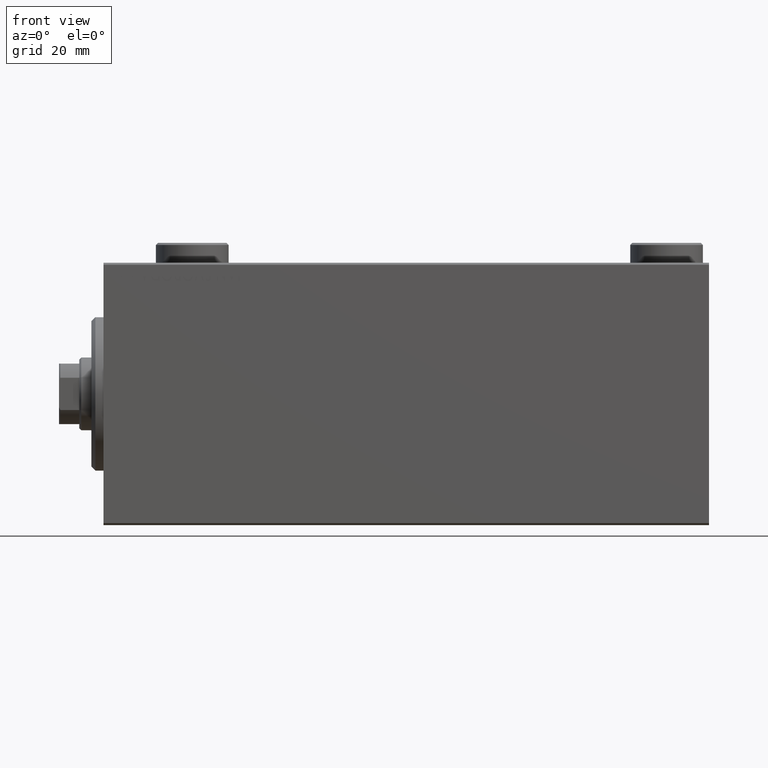
[diagram: clean part render]
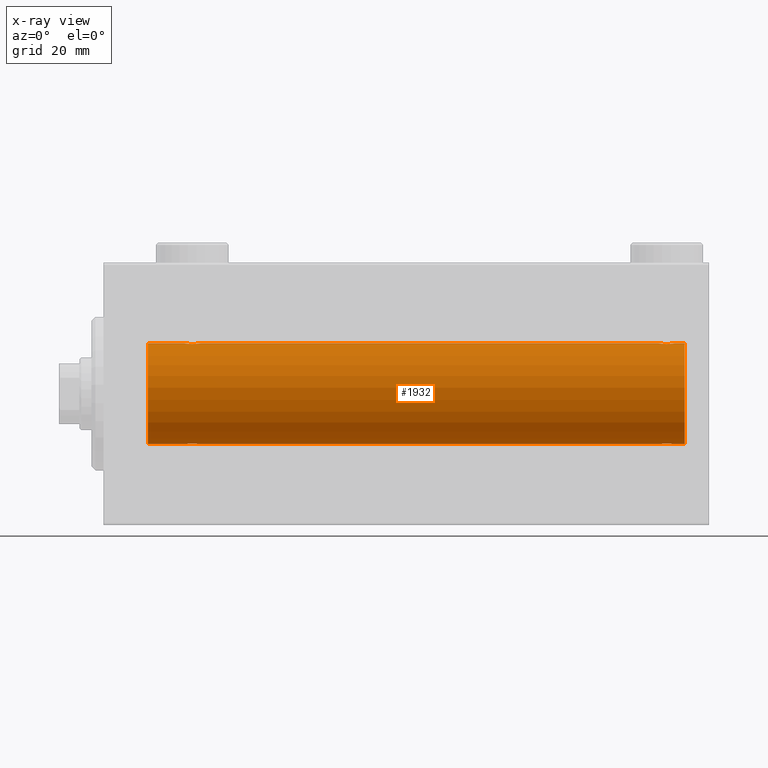
[diagram: x-ray — body ghosted, one internal face saturated and labeled with its STEP entity id]
A machine part, front view, then the same camera in x-ray: the body is ghosted and one INTERNAL B-rep face — a face not visible from any outside direction — is saturated and labeled: STEP entity #1932.
In plain terms, the highlighted cylindrical surface (partial cylindrical patch) has radius 12.5 mm, axis along (-1, -0, -0).
Its self-contained STEP definition (entity closure, byte-faithful):
#68 = CARTESIAN_POINT ( 'NONE',  ( 22.13340250451295077, -1.999916920503817197, -12.33897614545467469 ) ) ;
#323 = CARTESIAN_POINT ( 'NONE',  ( 141.5000000000000000, 1.530808426269529245E-15, -12.50000000000000000 ) ) ;
#525 = CARTESIAN_POINT ( 'NONE',  ( 23.94744340572329833, -0.5247436444070328054, -12.49130933415156619 ) ) ;
#537 = B_SPLINE_CURVE_WITH_KNOTS ( 'NONE', 3,
 ( #18256, #6763, #525, #21031, #20802, #42948, #4204, #42484, #14336, #14557, #34873, #35096, #25178, #17800, #68, #757, #3515, #3294, #14104, #17562, #17341, #32334, #28640, #14786, #31640, #45472, #10444, #11119 ),
 .UNSPECIFIED., .F., .F.,
 ( 4, 2, 2, 2, 2, 2, 2, 2, 2, 2, 2, 2, 2, 4 ),
 ( 0.006262980370572176700, 0.007045658964677373355, 0.007436998261729973851, 0.007828337558782575215, 0.008219676855835175711, 0.008611016152887776207, 0.009002355449940376703, 0.009393694746992977199, 0.009785034044045577695, 0.01017637334109817646, 0.01056771263815077869, 0.01095905193520337745, 0.01174173052930858711, 0.01252440912341379504 ),
 .UNSPECIFIED. ) ;
#757 = CARTESIAN_POINT ( 'NONE',  ( 21.86910032676576421, -2.000082296475566679, -12.33894933996983490 ) ) ;
#778 = CARTESIAN_POINT ( 'NONE',  ( 141.4474434057233054, -0.5247436444070331385, -12.49130933415156619 ) ) ;
#1040 = CARTESIAN_POINT ( 'NONE',  ( 141.4466567989838097, -0.5275951738695676685, 12.49118442338578738 ) ) ;
#1239 = CARTESIAN_POINT ( 'NONE',  ( 139.6334025045129579, -1.999916920503823858, -12.33897614545467292 ) ) ;
#1316 = CARTESIAN_POINT ( 'NONE',  ( 24.00000000000000000, 1.530808426277417854E-15, -12.50000000000000000 ) ) ;
#1842 = CARTESIAN_POINT ( 'NONE',  ( 21.73608626897564733, -1.986793270638199882, 12.34112317291865146 ) ) ;
#1932 = ADVANCED_FACE ( 'NONE', ( #22818 ), #15889, .F. ) ;
#2076 = CARTESIAN_POINT ( 'NONE',  ( 144.0000000000000000, 0.000000000000000000, 0.000000000000000000 ) ) ;
#2740 = EDGE_CURVE ( 'NONE', #37736, #31559, #42688, .T. ) ;
#2744 = AXIS2_PLACEMENT_3D ( 'NONE', #2076, #29965, #12434 ) ;
#2985 = ORIENTED_EDGE ( 'NONE', *, *, #43672, .T. ) ;
#3254 = CARTESIAN_POINT ( 'NONE',  ( 11.00000000000001066, 0.000000000000000000, 0.000000000000000000 ) ) ;
#3294 = CARTESIAN_POINT ( 'NONE',  ( 21.48306273302371494, -1.936441098420706997, -12.34912369794528431 ) ) ;
#3515 = CARTESIAN_POINT ( 'NONE',  ( 21.73906502714393341, -1.987194304939077671, -12.34105826212746138 ) ) ;
#3770 = CARTESIAN_POINT ( 'NONE',  ( 139.2390650271438801, -1.987194304939086331, -12.34105826212745605 ) ) ;
#3846 = ORIENTED_EDGE ( 'NONE', *, *, #44399, .F. ) ;
#3933 = B_SPLINE_CURVE_WITH_KNOTS ( 'NONE', 3,
 ( #29556, #37598, #23085, #6027, #12933, #30233, #25687, #20068, #27217, #32617, #16145, #9491, #9040, #37824, #18536, #37155, #5577, #37379, #26547, #26779, #11628, #33913, #39758, #15928, #22227, #1040, #40851, #8188 ),
 .UNSPECIFIED., .F., .F.,
 ( 4, 2, 2, 2, 2, 2, 2, 2, 2, 2, 2, 2, 2, 4 ),
 ( 0.006262980370572171496, 0.007045658964677375090, 0.007436998261729976453, 0.007828337558782578684, 0.008219676855835179180, 0.008611016152887781411, 0.009002355449940383642, 0.009393694746992985872, 0.009785034044045588103, 0.01017637334109819033, 0.01056771263815079256, 0.01095905193520339306, 0.01174173052930859579, 0.01252440912341379851 ),
 .UNSPECIFIED. ) ;
#4204 = CARTESIAN_POINT ( 'NONE',  ( 23.50722151467992660, -1.321088093821078502, -12.43033959299025248 ) ) ;
#4447 = CARTESIAN_POINT ( 'NONE',  ( 140.8229994310773634, -1.505544071529930417, -12.40934942683854381 ) ) ;
#4690 = CARTESIAN_POINT ( 'NONE',  ( 140.1464389696358808, -1.897190184049194039, -12.35529285772521391 ) ) ;
#4819 = EDGE_CURVE ( 'NONE', #21683, #11272, #28570, .T. ) ;
#5273 = LINE ( 'NONE', #44672, #11292 ) ;
#5296 = CARTESIAN_POINT ( 'NONE',  ( 20.26436921980423378, -1.002396200863559850, 12.46022444231050841 ) ) ;
#5577 = CARTESIAN_POINT ( 'NONE',  ( 139.7609349728560915, -1.987194304939070788, 12.34105826212745960 ) ) ;
#5601 = CARTESIAN_POINT ( 'NONE',  ( 137.4999999999999716, -1.407690443847321693E-14, -12.50000000000000000 ) ) ;
#5792 = EDGE_CURVE ( 'NONE', #8577, #44203, #3933, .T. ) ;
#6027 = CARTESIAN_POINT ( 'NONE',  ( 137.7021439353174230, -0.8858253204748001153, 12.46915613403961132 ) ) ;
#6205 = CARTESIAN_POINT ( 'NONE',  ( 20.20214393531741237, -0.8858253204748030019, 12.46915613403961132 ) ) ;
#6241 = AXIS2_PLACEMENT_3D ( 'NONE', #43583, #26060, #19117 ) ;
#6392 = VERTEX_POINT ( 'NONE', #41856 ) ;
#6763 = CARTESIAN_POINT ( 'NONE',  ( 24.00000000000000711, -0.2612140938986747818, -12.50000000000000533 ) ) ;
#7179 = VERTEX_POINT ( 'NONE', #16508 ) ;
#7424 = EDGE_CURVE ( 'NONE', #25133, #44203, #31948, .T. ) ;
#8060 = VERTEX_POINT ( 'NONE', #11314 ) ;
#8188 = CARTESIAN_POINT ( 'NONE',  ( 141.5000000000000000, 3.161822422844574965E-15, 12.50000000000000000 ) ) ;
#8273 = CARTESIAN_POINT ( 'NONE',  ( 137.4999999999999716, -7.266434456262306043E-23, 12.50000000000000000 ) ) ;
#8452 = ORIENTED_EDGE ( 'NONE', *, *, #7424, .F. ) ;
#8577 = VERTEX_POINT ( 'NONE', #8273 ) ;
#9040 = CARTESIAN_POINT ( 'NONE',  ( 138.9803852764212877, -1.935716533151636165, 12.34923763528285434 ) ) ;
#9222 = CARTESIAN_POINT ( 'NONE',  ( 21.35356103036408371, -1.897190184049190043, 12.35529285772521391 ) ) ;
#9271 = CARTESIAN_POINT ( 'NONE',  ( 24.00000000000000000, -2.019790789754703983E-15, 12.50000000000000000 ) ) ;
#9439 = CARTESIAN_POINT ( 'NONE',  ( 22.51693726697628506, -1.936441098420709439, 12.34912369794528786 ) ) ;
#9491 = CARTESIAN_POINT ( 'NONE',  ( 138.8535610303640624, -1.897190184049181383, 12.35529285772521391 ) ) ;
#9666 = CARTESIAN_POINT ( 'NONE',  ( 23.99999999999998934, -0.2646816682749779659, 12.49999999999999822 ) ) ;
#10444 = CARTESIAN_POINT ( 'NONE',  ( 20.00000000000000000, -0.2646816682749822958, -12.50000000000000000 ) ) ;
#10867 = B_SPLINE_CURVE_WITH_KNOTS ( 'NONE', 3,
 ( #37547, #19566, #30180, #6205, #5296, #15877, #33634, #29950, #41022, #27165, #16329, #9222, #41239, #1842, #16558, #20239, #44244, #9439, #44016, #23033, #40799, #16096, #29731, #12423, #20018, #12652, #9666, #26729 ),
 .UNSPECIFIED., .F., .F.,
 ( 4, 2, 2, 2, 2, 2, 2, 2, 2, 2, 2, 2, 2, 4 ),
 ( 0.006262980370572162822, 0.007045658964677358610, 0.007436998261729958239, 0.007828337558782557867, 0.008219676855835158363, 0.008611016152887758859, 0.009002355449940359355, 0.009393694746992958117, 0.009785034044045558613, 0.01017637334109815911, 0.01056771263815075960, 0.01095905193520336010, 0.01174173052930856803, 0.01252440912341377596 ),
 .UNSPECIFIED. ) ;
#11119 = CARTESIAN_POINT ( 'NONE',  ( 19.99999999999999645, -3.213890523917628161E-15, -12.50000000000000000 ) ) ;
#11272 = VERTEX_POINT ( 'NONE', #21117 ) ;
#11292 = VECTOR ( 'NONE', #19767, 1000.000000000000000 ) ;
#11314 = CARTESIAN_POINT ( 'NONE',  ( 19.99999999999999645, -7.265724481447607133E-23, 12.50000000000000000 ) ) ;
#11628 = CARTESIAN_POINT ( 'NONE',  ( 140.5009979209850428, -1.736403706023267546, 12.37902502246767966 ) ) ;
#12423 = CARTESIAN_POINT ( 'NONE',  ( 23.59744774691022684, -1.231226695485370337, 12.44059298055987917 ) ) ;
#12434 = DIRECTION ( 'NONE',  ( 0.000000000000000000, 0.000000000000000000, 1.000000000000000000 ) ) ;
#12652 = CARTESIAN_POINT ( 'NONE',  ( 23.94665679898379906, -0.5275951738695691118, 12.49118442338578561 ) ) ;
#12855 = ORIENTED_EDGE ( 'NONE', *, *, #2740, .T. ) ;
#12933 = CARTESIAN_POINT ( 'NONE',  ( 137.7643692198042515, -1.002396200863552300, 12.46022444231050841 ) ) ;
#12945 = EDGE_CURVE ( 'NONE', #6392, #37736, #15858, .T. ) ;
#14104 = CARTESIAN_POINT ( 'NONE',  ( 21.35574721202270254, -1.897913903092047327, -12.35518060345725289 ) ) ;
#14336 = CARTESIAN_POINT ( 'NONE',  ( 23.22027149897420628, -1.589951752150275732, -12.39868561261689273 ) ) ;
#14557 = CARTESIAN_POINT ( 'NONE',  ( 23.00345574076691335, -1.734959850168410256, -12.37922718965050528 ) ) ;
#14786 = CARTESIAN_POINT ( 'NONE',  ( 20.40255225308977671, -1.231226695485369893, -12.44059298055988627 ) ) ;
#15041 = CARTESIAN_POINT ( 'NONE',  ( 140.0196147235787691, -1.935716533151647711, -12.34923763528284901 ) ) ;
#15093 = EDGE_CURVE ( 'NONE', #31559, #23351, #35931, .T. ) ;
#15263 = CARTESIAN_POINT ( 'NONE',  ( 139.3691003267657607, -2.000082296475573784, -12.33894933996983667 ) ) ;
#15443 = VECTOR ( 'NONE', #37985, 1000.000000000000000 ) ;
#15858 = LINE ( 'NONE', #33173, #25144 ) ;
#15877 = CARTESIAN_POINT ( 'NONE',  ( 20.41018909771709744, -1.220538259806348114, 12.44075068685996754 ) ) ;
#15889 = CYLINDRICAL_SURFACE ( 'NONE', #2744, 12.50000000000000000 ) ;
#15928 = CARTESIAN_POINT ( 'NONE',  ( 141.0974477469102339, -1.231226695485358569, 12.44059298055988450 ) ) ;
#15953 = CARTESIAN_POINT ( 'NONE',  ( 138.4990020790149003, -1.736403706023279536, -12.37902502246767966 ) ) ;
#16096 = CARTESIAN_POINT ( 'NONE',  ( 23.21854119541937678, -1.591305132013879131, 12.39851226212236135 ) ) ;
#16145 = CARTESIAN_POINT ( 'NONE',  ( 138.6112527420295351, -1.796480516834680019, 12.37033750336835602 ) ) ;
#16147 = VECTOR ( 'NONE', #28479, 1000.000000000000000 ) ;
#16329 = CARTESIAN_POINT ( 'NONE',  ( 21.11125274202960256, -1.796480516834689567, 12.37033750336835602 ) ) ;
#16508 = CARTESIAN_POINT ( 'NONE',  ( 19.99999999999999645, -3.213890523917628161E-15, -12.50000000000000000 ) ) ;
#16558 = CARTESIAN_POINT ( 'NONE',  ( 21.86659749548704212, -1.999916920503819862, 12.33897614545467469 ) ) ;
#17302 = DIRECTION ( 'NONE',  ( -1.000000000000000000, 0.000000000000000000, 0.000000000000000000 ) ) ;
#17341 = CARTESIAN_POINT ( 'NONE',  ( 20.99900207901491811, -1.736403706023270654, -12.37902502246767966 ) ) ;
#17559 = AXIS2_PLACEMENT_3D ( 'NONE', #3254, #17302, #17998 ) ;
#17562 = CARTESIAN_POINT ( 'NONE',  ( 21.11383846120566332, -1.797736511708062368, -12.37015393445320122 ) ) ;
#17800 = CARTESIAN_POINT ( 'NONE',  ( 22.26391373102435622, -1.986793270638196551, -12.34112317291864791 ) ) ;
#17823 = CARTESIAN_POINT ( 'NONE',  ( 138.9830627330237292, -1.936441098420716544, -12.34912369794528608 ) ) ;
#17998 = DIRECTION ( 'NONE',  ( 0.000000000000000000, 0.000000000000000000, 1.000000000000000000 ) ) ;
#18256 = CARTESIAN_POINT ( 'NONE',  ( 24.00000000000000000, 1.530808426277417854E-15, -12.50000000000000000 ) ) ;
#18275 = CARTESIAN_POINT ( 'NONE',  ( 141.5000000000000284, -0.2612140938986738381, -12.50000000000000888 ) ) ;
#18506 = CARTESIAN_POINT ( 'NONE',  ( 140.7202714989741992, -1.589951752150262632, -12.39868561261689450 ) ) ;
#18536 = CARTESIAN_POINT ( 'NONE',  ( 139.3665974954869853, -1.999916920503812090, 12.33897614545467292 ) ) ;
#19117 = DIRECTION ( 'NONE',  ( 0.000000000000000000, 0.000000000000000000, 1.000000000000000000 ) ) ;
#19187 = CARTESIAN_POINT ( 'NONE',  ( 137.5533432010162471, -0.5275951738695825455, -12.49118442338578738 ) ) ;
#19566 = CARTESIAN_POINT ( 'NONE',  ( 20.00000000000000000, -0.2612140938986765581, 12.50000000000000000 ) ) ;
#19642 = CARTESIAN_POINT ( 'NONE',  ( 137.5000000000000284, -0.2646816682749970062, -12.50000000000000533 ) ) ;
#19767 = DIRECTION ( 'NONE',  ( -1.000000000000000000, -0.000000000000000000, -0.000000000000000000 ) ) ;
#19933 = ORIENTED_EDGE ( 'NONE', *, *, #40483, .T. ) ;
#20018 = CARTESIAN_POINT ( 'NONE',  ( 23.74662136620892383, -1.008535157355843648, 12.46157701909767823 ) ) ;
#20068 = CARTESIAN_POINT ( 'NONE',  ( 138.1770005689227219, -1.505544071529936634, 12.40934942683854203 ) ) ;
#20195 = DIRECTION ( 'NONE',  ( -1.000000000000000000, -0.000000000000000000, -0.000000000000000000 ) ) ;
#20239 = CARTESIAN_POINT ( 'NONE',  ( 22.13089967323422158, -2.000082296475567567, 12.33894933996983134 ) ) ;
#20802 = CARTESIAN_POINT ( 'NONE',  ( 23.73563078019576977, -1.002396200863559184, -12.46022444231050663 ) ) ;
#21031 = CARTESIAN_POINT ( 'NONE',  ( 23.79785606468258052, -0.8858253204748003373, -12.46915613403960954 ) ) ;
#21117 = CARTESIAN_POINT ( 'NONE',  ( 11.00000000000001066, 0.000000000000000000, 12.50000000000000000 ) ) ;
#21275 = CARTESIAN_POINT ( 'NONE',  ( 141.0898109022828635, -1.220538259806350112, -12.44075068685997110 ) ) ;
#21683 = VERTEX_POINT ( 'NONE', #33955 ) ;
#21913 = ORIENTED_EDGE ( 'NONE', *, *, #23300, .F. ) ;
#21958 = CARTESIAN_POINT ( 'NONE',  ( 141.2356307801957769, -1.002396200863559850, -12.46022444231050663 ) ) ;
#22227 = CARTESIAN_POINT ( 'NONE',  ( 141.2466213662089274, -1.008535157355840761, 12.46157701909768178 ) ) ;
#22422 = EDGE_CURVE ( 'NONE', #8577, #42396, #5273, .T. ) ;
#22477 = ORIENTED_EDGE ( 'NONE', *, *, #22422, .F. ) ;
#22818 = FACE_OUTER_BOUND ( 'NONE', #24966, .T. ) ;
#22950 = ORIENTED_EDGE ( 'NONE', *, *, #15093, .T. ) ;
#23033 = CARTESIAN_POINT ( 'NONE',  ( 22.88616153879432957, -1.797736511708064366, 12.37015393445321010 ) ) ;
#23085 = CARTESIAN_POINT ( 'NONE',  ( 137.5525565942766661, -0.5247436444070314732, 12.49130933415156619 ) ) ;
#23300 = EDGE_CURVE ( 'NONE', #8060, #11272, #23913, .T. ) ;
#23351 = VERTEX_POINT ( 'NONE', #1316 ) ;
#23913 = LINE ( 'NONE', #45581, #15443 ) ;
#24483 = CARTESIAN_POINT ( 'NONE',  ( 137.4999999999999716, -1.407690443847321693E-14, -12.50000000000000000 ) ) ;
#24966 = EDGE_LOOP ( 'NONE', ( #3846, #38043, #12855, #22950, #26758, #19933, #35184, #21913, #2985, #22477, #25329, #8452 ) ) ;
#25133 = VERTEX_POINT ( 'NONE', #30548 ) ;
#25144 = VECTOR ( 'NONE', #29933, 1000.000000000000000 ) ;
#25178 = CARTESIAN_POINT ( 'NONE',  ( 22.51961472357873717, -1.935716533151642826, -12.34923763528285257 ) ) ;
#25329 = ORIENTED_EDGE ( 'NONE', *, *, #5792, .T. ) ;
#25687 = CARTESIAN_POINT ( 'NONE',  ( 137.9927784853200308, -1.321088093821080278, 12.43033959299025071 ) ) ;
#26060 = DIRECTION ( 'NONE',  ( -1.000000000000000000, 0.000000000000000000, 0.000000000000000000 ) ) ;
#26547 = CARTESIAN_POINT ( 'NONE',  ( 140.1442527879773081, -1.897913903092044663, 12.35518060345725289 ) ) ;
#26729 = CARTESIAN_POINT ( 'NONE',  ( 24.00000000000000000, -2.019790789754703983E-15, 12.50000000000000000 ) ) ;
#26758 = ORIENTED_EDGE ( 'NONE', *, *, #35381, .T. ) ;
#26779 = CARTESIAN_POINT ( 'NONE',  ( 140.3861615387943118, -1.797736511708058815, 12.37015393445321187 ) ) ;
#27165 = CARTESIAN_POINT ( 'NONE',  ( 20.99654425923307599, -1.734959850168413142, 12.37922718965050528 ) ) ;
#27217 = CARTESIAN_POINT ( 'NONE',  ( 138.2797285010257724, -1.589951752150270181, 12.39868561261689095 ) ) ;
#28479 = DIRECTION ( 'NONE',  ( -1.000000000000000000, -0.000000000000000000, -0.000000000000000000 ) ) ;
#28570 = CIRCLE ( 'NONE', #17559, 12.50000000000000000 ) ;
#28640 = CARTESIAN_POINT ( 'NONE',  ( 20.67883287148555382, -1.507135374967699670, -12.40915432986587064 ) ) ;
#29556 = CARTESIAN_POINT ( 'NONE',  ( 137.4999999999999716, -7.266434456262306043E-23, 12.50000000000000000 ) ) ;
#29731 = CARTESIAN_POINT ( 'NONE',  ( 23.32116712851443552, -1.507135374967700114, 12.40915432986586708 ) ) ;
#29799 = CARTESIAN_POINT ( 'NONE',  ( 141.5000000000000000, 3.161822422844574965E-15, 12.50000000000000000 ) ) ;
#29933 = DIRECTION ( 'NONE',  ( -1.000000000000000000, -0.000000000000000000, -0.000000000000000000 ) ) ;
#29950 = CARTESIAN_POINT ( 'NONE',  ( 20.67700056892266502, -1.505544071529936634, 12.40934942683854025 ) ) ;
#29965 = DIRECTION ( 'NONE',  ( -1.000000000000000000, -0.000000000000000000, -0.000000000000000000 ) ) ;
#30031 = CARTESIAN_POINT ( 'NONE',  ( 138.1788328714855538, -1.507135374967702557, -12.40915432986586708 ) ) ;
#30180 = CARTESIAN_POINT ( 'NONE',  ( 20.05255659427669812, -0.5247436444070349149, 12.49130933415156974 ) ) ;
#30233 = CARTESIAN_POINT ( 'NONE',  ( 137.9101890977170513, -1.220538259806341008, 12.44075068685997110 ) ) ;
#30548 = CARTESIAN_POINT ( 'NONE',  ( 144.0000000000000000, 0.000000000000000000, 12.50000000000000000 ) ) ;
#31559 = VERTEX_POINT ( 'NONE', #24483 ) ;
#31640 = CARTESIAN_POINT ( 'NONE',  ( 20.25337863379106551, -1.008535157355840761, -12.46157701909767646 ) ) ;
#31948 = LINE ( 'NONE', #39773, #16147 ) ;
#32334 = CARTESIAN_POINT ( 'NONE',  ( 20.78145880458060901, -1.591305132013878021, -12.39851226212236313 ) ) ;
#32587 = CARTESIAN_POINT ( 'NONE',  ( 140.5034557407669809, -1.734959850168402706, -12.37922718965050528 ) ) ;
#32617 = CARTESIAN_POINT ( 'NONE',  ( 138.4965442592330760, -1.734959850168406259, 12.37922718965050883 ) ) ;
#32734 = CIRCLE ( 'NONE', #6241, 12.50000000000000000 ) ;
#33173 = CARTESIAN_POINT ( 'NONE',  ( 144.0000000000000000, 1.530808498934191521E-15, -12.50000000000000000 ) ) ;
#33492 = VECTOR ( 'NONE', #20195, 1000.000000000000000 ) ;
#33496 = CARTESIAN_POINT ( 'NONE',  ( 137.9025522530897945, -1.231226695485371003, -12.44059298055988094 ) ) ;
#33634 = CARTESIAN_POINT ( 'NONE',  ( 20.49277848532006274, -1.321088093821079168, 12.43033959299025071 ) ) ;
#33913 = CARTESIAN_POINT ( 'NONE',  ( 140.7185411954193910, -1.591305132013873358, 12.39851226212236490 ) ) ;
#33955 = CARTESIAN_POINT ( 'NONE',  ( 11.00000000000001066, 1.530808498934191521E-15, -12.50000000000000000 ) ) ;
#34873 = CARTESIAN_POINT ( 'NONE',  ( 22.88874725797039389, -1.796480516834687347, -12.37033750336835247 ) ) ;
#35096 = CARTESIAN_POINT ( 'NONE',  ( 22.64643896963591985, -1.897190184049187378, -12.35529285772521924 ) ) ;
#35184 = ORIENTED_EDGE ( 'NONE', *, *, #4819, .T. ) ;
#35343 = CARTESIAN_POINT ( 'NONE',  ( 140.3887472579703797, -1.796480516834692231, -12.37033750336835425 ) ) ;
#35381 = EDGE_CURVE ( 'NONE', #23351, #7179, #537, .T. ) ;
#35931 = LINE ( 'NONE', #39635, #37004 ) ;
#36028 = CARTESIAN_POINT ( 'NONE',  ( 141.0072215146798840, -1.321088093821069842, -12.43033959299025248 ) ) ;
#36122 = CARTESIAN_POINT ( 'NONE',  ( 141.5000000000000000, 1.530808426269529245E-15, -12.50000000000000000 ) ) ;
#36621 = DIRECTION ( 'NONE',  ( -1.000000000000000000, -0.000000000000000000, -0.000000000000000000 ) ) ;
#37004 = VECTOR ( 'NONE', #36621, 1000.000000000000000 ) ;
#37155 = CARTESIAN_POINT ( 'NONE',  ( 139.6308996732342109, -2.000082296475561794, 12.33894933996983134 ) ) ;
#37379 = CARTESIAN_POINT ( 'NONE',  ( 140.0169372669762708, -1.936441098420697671, 12.34912369794529141 ) ) ;
#37547 = CARTESIAN_POINT ( 'NONE',  ( 19.99999999999999645, -7.265724481447607133E-23, 12.50000000000000000 ) ) ;
#37598 = CARTESIAN_POINT ( 'NONE',  ( 137.5000000000000000, -0.2612140938986755589, 12.50000000000000533 ) ) ;
#37736 = VERTEX_POINT ( 'NONE', #36122 ) ;
#37824 = CARTESIAN_POINT ( 'NONE',  ( 139.2360862689756402, -1.986793270638192555, 12.34112317291865324 ) ) ;
#37956 = CARTESIAN_POINT ( 'NONE',  ( 144.0000000000000000, 1.530808498934191521E-15, -12.50000000000000000 ) ) ;
#37985 = DIRECTION ( 'NONE',  ( -1.000000000000000000, -0.000000000000000000, -0.000000000000000000 ) ) ;
#38043 = ORIENTED_EDGE ( 'NONE', *, *, #12945, .T. ) ;
#39505 = CARTESIAN_POINT ( 'NONE',  ( 141.2978560646826054, -0.8858253204748030019, -12.46915613403960954 ) ) ;
#39635 = CARTESIAN_POINT ( 'NONE',  ( 144.0000000000000000, 1.530808498934191521E-15, -12.50000000000000000 ) ) ;
#39728 = CARTESIAN_POINT ( 'NONE',  ( 139.7639137310243598, -1.986793270638203879, -12.34112317291864969 ) ) ;
#39758 = CARTESIAN_POINT ( 'NONE',  ( 140.8211671285144178, -1.507135374967689234, 12.40915432986587241 ) ) ;
#39773 = CARTESIAN_POINT ( 'NONE',  ( 144.0000000000000000, 0.000000000000000000, 12.50000000000000000 ) ) ;
#40483 = EDGE_CURVE ( 'NONE', #7179, #21683, #40976, .T. ) ;
#40799 = CARTESIAN_POINT ( 'NONE',  ( 23.00099792098507834, -1.736403706023272875, 12.37902502246767789 ) ) ;
#40851 = CARTESIAN_POINT ( 'NONE',  ( 141.5000000000000284, -0.2646816682749797423, 12.50000000000000533 ) ) ;
#40976 = LINE ( 'NONE', #37956, #33492 ) ;
#41022 = CARTESIAN_POINT ( 'NONE',  ( 20.77972850102579372, -1.589951752150277953, 12.39868561261689095 ) ) ;
#41239 = CARTESIAN_POINT ( 'NONE',  ( 21.48038527642126283, -1.935716533151644381, 12.34923763528284901 ) ) ;
#41856 = CARTESIAN_POINT ( 'NONE',  ( 144.0000000000000000, 1.530808498934191521E-15, -12.50000000000000000 ) ) ;
#42396 = VERTEX_POINT ( 'NONE', #9271 ) ;
#42484 = CARTESIAN_POINT ( 'NONE',  ( 23.32299943107732432, -1.505544071529935080, -12.40934942683853848 ) ) ;
#42688 = B_SPLINE_CURVE_WITH_KNOTS ( 'NONE', 3,
 ( #323, #18275, #778, #39505, #21958, #21275, #36028, #4447, #18506, #32587, #35343, #4690, #15041, #39728, #1239, #15263, #3770, #17823, #43652, #44321, #15953, #43879, #30031, #33496, #44092, #19187, #19642, #5601 ),
 .UNSPECIFIED., .F., .F.,
 ( 4, 2, 2, 2, 2, 2, 2, 2, 2, 2, 2, 2, 2, 4 ),
 ( 0.006262980370572158485, 0.007045658964677362947, 0.007436998261729964310, 0.007828337558782566541, 0.008219676855835168772, 0.008611016152887771002, 0.009002355449940373233, 0.009393694746992975464, 0.009785034044045577695, 0.01017637334109817993, 0.01056771263815078216, 0.01095905193520338439, 0.01174173052930858538, 0.01252440912341378984 ),
 .UNSPECIFIED. ) ;
#42948 = CARTESIAN_POINT ( 'NONE',  ( 23.58981090228289546, -1.220538259806347225, -12.44075068685997287 ) ) ;
#43583 = CARTESIAN_POINT ( 'NONE',  ( 144.0000000000000000, 0.000000000000000000, 0.000000000000000000 ) ) ;
#43652 = CARTESIAN_POINT ( 'NONE',  ( 138.8557472120226919, -1.897913903092057541, -12.35518060345725289 ) ) ;
#43672 = EDGE_CURVE ( 'NONE', #8060, #42396, #10867, .T. ) ;
#43879 = CARTESIAN_POINT ( 'NONE',  ( 138.2814588045805522, -1.591305132013885348, -12.39851226212236135 ) ) ;
#44016 = CARTESIAN_POINT ( 'NONE',  ( 22.64425278797729746, -1.897913903092049104, 12.35518060345724933 ) ) ;
#44092 = CARTESIAN_POINT ( 'NONE',  ( 137.7533786337911010, -1.008535157355856304, -12.46157701909768001 ) ) ;
#44203 = VERTEX_POINT ( 'NONE', #29799 ) ;
#44244 = CARTESIAN_POINT ( 'NONE',  ( 22.26093497285606304, -1.987194304939079004, 12.34105826212746138 ) ) ;
#44321 = CARTESIAN_POINT ( 'NONE',  ( 138.6138384612056598, -1.797736511708071472, -12.37015393445320655 ) ) ;
#44399 = EDGE_CURVE ( 'NONE', #6392, #25133, #32734, .T. ) ;
#44672 = CARTESIAN_POINT ( 'NONE',  ( 144.0000000000000000, 0.000000000000000000, 12.50000000000000000 ) ) ;
#45472 = CARTESIAN_POINT ( 'NONE',  ( 20.05334320101619738, -0.5275951738695662252, -12.49118442338578561 ) ) ;
#45581 = CARTESIAN_POINT ( 'NONE',  ( 144.0000000000000000, 0.000000000000000000, 12.50000000000000000 ) ) ;